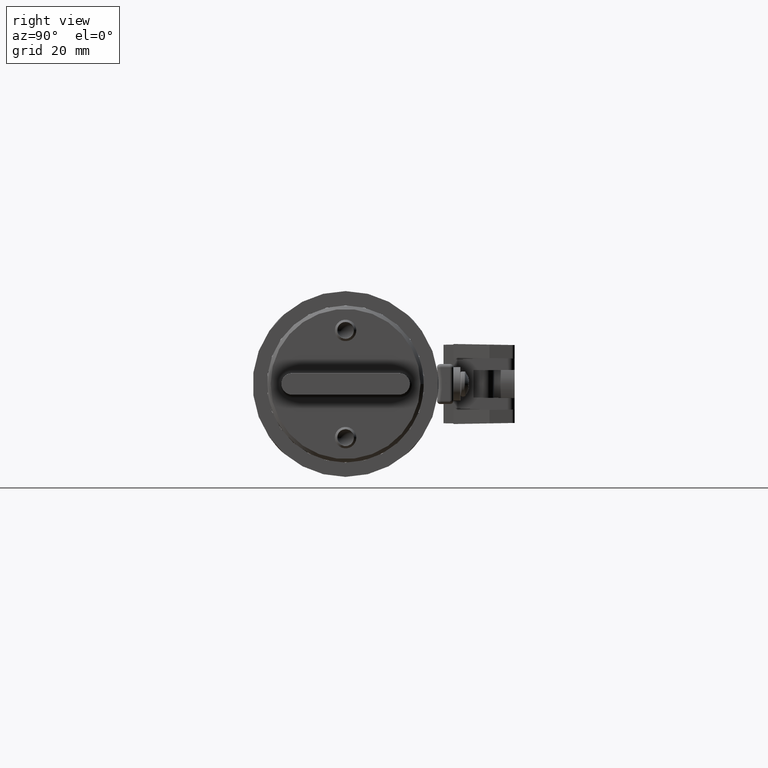
[diagram: clean part render]
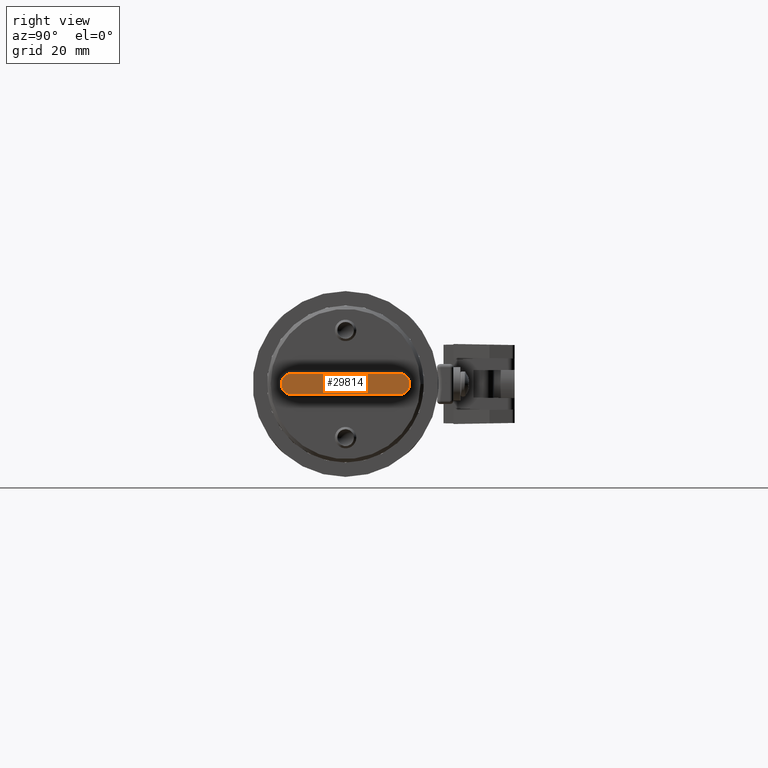
[diagram: same view with one face highlighted and labeled with its STEP entity id]
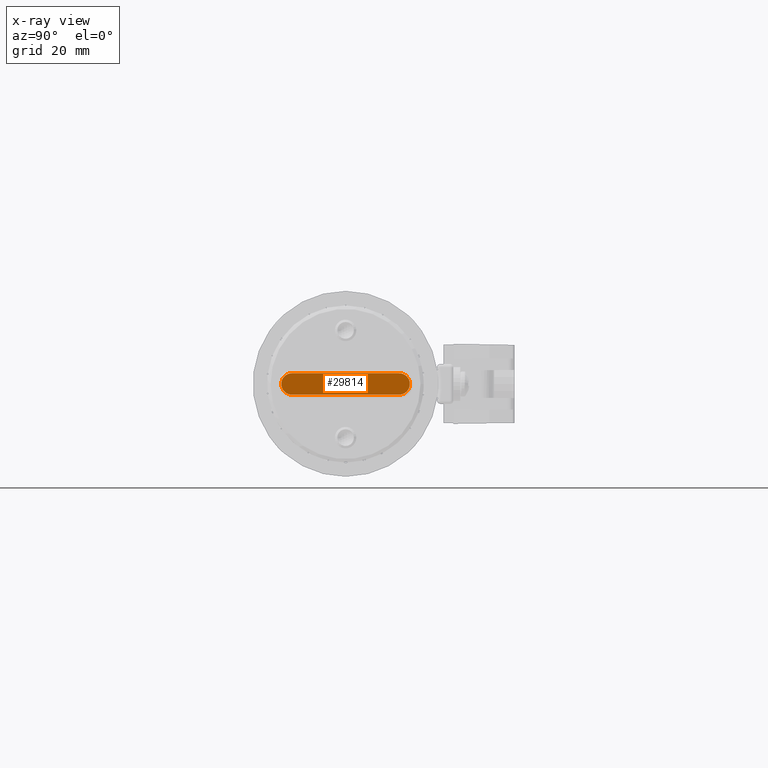
[diagram: x-ray of the same camera — body ghosted, the highlighted face saturated]
A machine part, right view. The second image highlights one B-rep face of the part: STEP entity #29814.
The next image is the same camera in x-ray: the body ghosted, the highlighted face saturated — about 0% of this face is hidden behind the body in this view.
In plain terms, the highlighted planar face has unit normal (1, 0, -0).
Its self-contained STEP definition (entity closure, byte-faithful):
#71 = AXIS2_PLACEMENT_3D ( 'NONE', #19894, #65856, #26530 ) ;
#1925 = CARTESIAN_POINT ( 'NONE',  ( 4.124999999999998200, -0.4687500000000000000, -0.09374999999999984700 ) ) ;
#6559 = EDGE_CURVE ( 'NONE', #10207, #54388, #15052, .T. ) ;
#8597 = CARTESIAN_POINT ( 'NONE',  ( 4.124999999999998200, -0.4687500000000000000, 0.09375000000000012500 ) ) ;
#8864 = DIRECTION ( 'NONE',  ( 2.155048081208195600E-047, -1.000000000000000000, 1.821231995776175500E-017 ) ) ;
#10207 = VERTEX_POINT ( 'NONE', #1925 ) ;
#10279 = EDGE_CURVE ( 'NONE', #13212, #17296, #32636, .T. ) ;
#12124 = DIRECTION ( 'NONE',  ( 1.000000000000000000, 0.0000000000000000000, -1.183291357831517700E-030 ) ) ;
#12965 = VECTOR ( 'NONE', #50452, 39.37007874015748100 ) ;
#13212 = VERTEX_POINT ( 'NONE', #56397 ) ;
#15052 = LINE ( 'NONE', #80243, #12965 ) ;
#15112 = VECTOR ( 'NONE', #8864, 39.37007874015748100 ) ;
#17296 = VERTEX_POINT ( 'NONE', #32014 ) ;
#17337 = ORIENTED_EDGE ( 'NONE', *, *, #22075, .T. ) ;
#19894 = CARTESIAN_POINT ( 'NONE',  ( 4.124999999999998200, -0.4687500000000000000, 5.975917486140553000E-017 ) ) ;
#22075 = EDGE_CURVE ( 'NONE', #17296, #10207, #77044, .T. ) ;
#23115 = CARTESIAN_POINT ( 'NONE',  ( 4.124999999999998200, -0.4687500000000000000, 5.975917486140553000E-017 ) ) ;
#26530 = DIRECTION ( 'NONE',  ( 0.0000000000000000000, 1.000000000000000000, 0.0000000000000000000 ) ) ;
#29753 = DIRECTION ( 'NONE',  ( -3.128766006814256500E-073, 1.000000000000000000, -2.644121404341181800E-043 ) ) ;
#29814 = ADVANCED_FACE ( 'NONE', ( #54637 ), #36070, .T. ) ;
#31281 = EDGE_LOOP ( 'NONE', ( #17337, #45426, #72828, #40419 ) ) ;
#32014 = CARTESIAN_POINT ( 'NONE',  ( 4.124999999999998200, -0.4687500000000000000, 0.09375000000000012500 ) ) ;
#32636 = LINE ( 'NONE', #8597, #15112 ) ;
#36070 = PLANE ( 'NONE',  #39377 ) ;
#39377 = AXIS2_PLACEMENT_3D ( 'NONE', #23115, #69004, #29753 ) ;
#40419 = ORIENTED_EDGE ( 'NONE', *, *, #10279, .T. ) ;
#43213 = CARTESIAN_POINT ( 'NONE',  ( 4.124999999999998200, 0.4687500000000000000, -0.09374999999999990300 ) ) ;
#45426 = ORIENTED_EDGE ( 'NONE', *, *, #6559, .T. ) ;
#50452 = DIRECTION ( 'NONE',  ( -6.465144243624586800E-047, 1.000000000000000000, -5.463695987328526400E-017 ) ) ;
#51560 = CARTESIAN_POINT ( 'NONE',  ( 4.124999999999998200, 0.4687500000000000000, 1.112382256183023300E-016 ) ) ;
#54388 = VERTEX_POINT ( 'NONE', #43213 ) ;
#54637 = FACE_OUTER_BOUND ( 'NONE', #31281, .T. ) ;
#56397 = CARTESIAN_POINT ( 'NONE',  ( 4.124999999999998200, 0.4687500000000000000, 0.09375000000000012500 ) ) ;
#58143 = DIRECTION ( 'NONE',  ( 0.0000000000000000000, 1.000000000000000000, 0.0000000000000000000 ) ) ;
#60996 = CIRCLE ( 'NONE', #80815, 0.09374999999999998600 ) ;
#65856 = DIRECTION ( 'NONE',  ( 1.000000000000000000, 0.0000000000000000000, -1.183291357831517700E-030 ) ) ;
#69004 = DIRECTION ( 'NONE',  ( 1.000000000000000000, 0.0000000000000000000, -1.183291357831517700E-030 ) ) ;
#71427 = EDGE_CURVE ( 'NONE', #54388, #13212, #60996, .T. ) ;
#72828 = ORIENTED_EDGE ( 'NONE', *, *, #71427, .T. ) ;
#77044 = CIRCLE ( 'NONE', #71, 0.09374999999999998600 ) ;
#80243 = CARTESIAN_POINT ( 'NONE',  ( 4.124999999999998200, -0.4687500000000000000, -0.09374999999999984700 ) ) ;
#80815 = AXIS2_PLACEMENT_3D ( 'NONE', #51560, #12124, #58143 ) ;